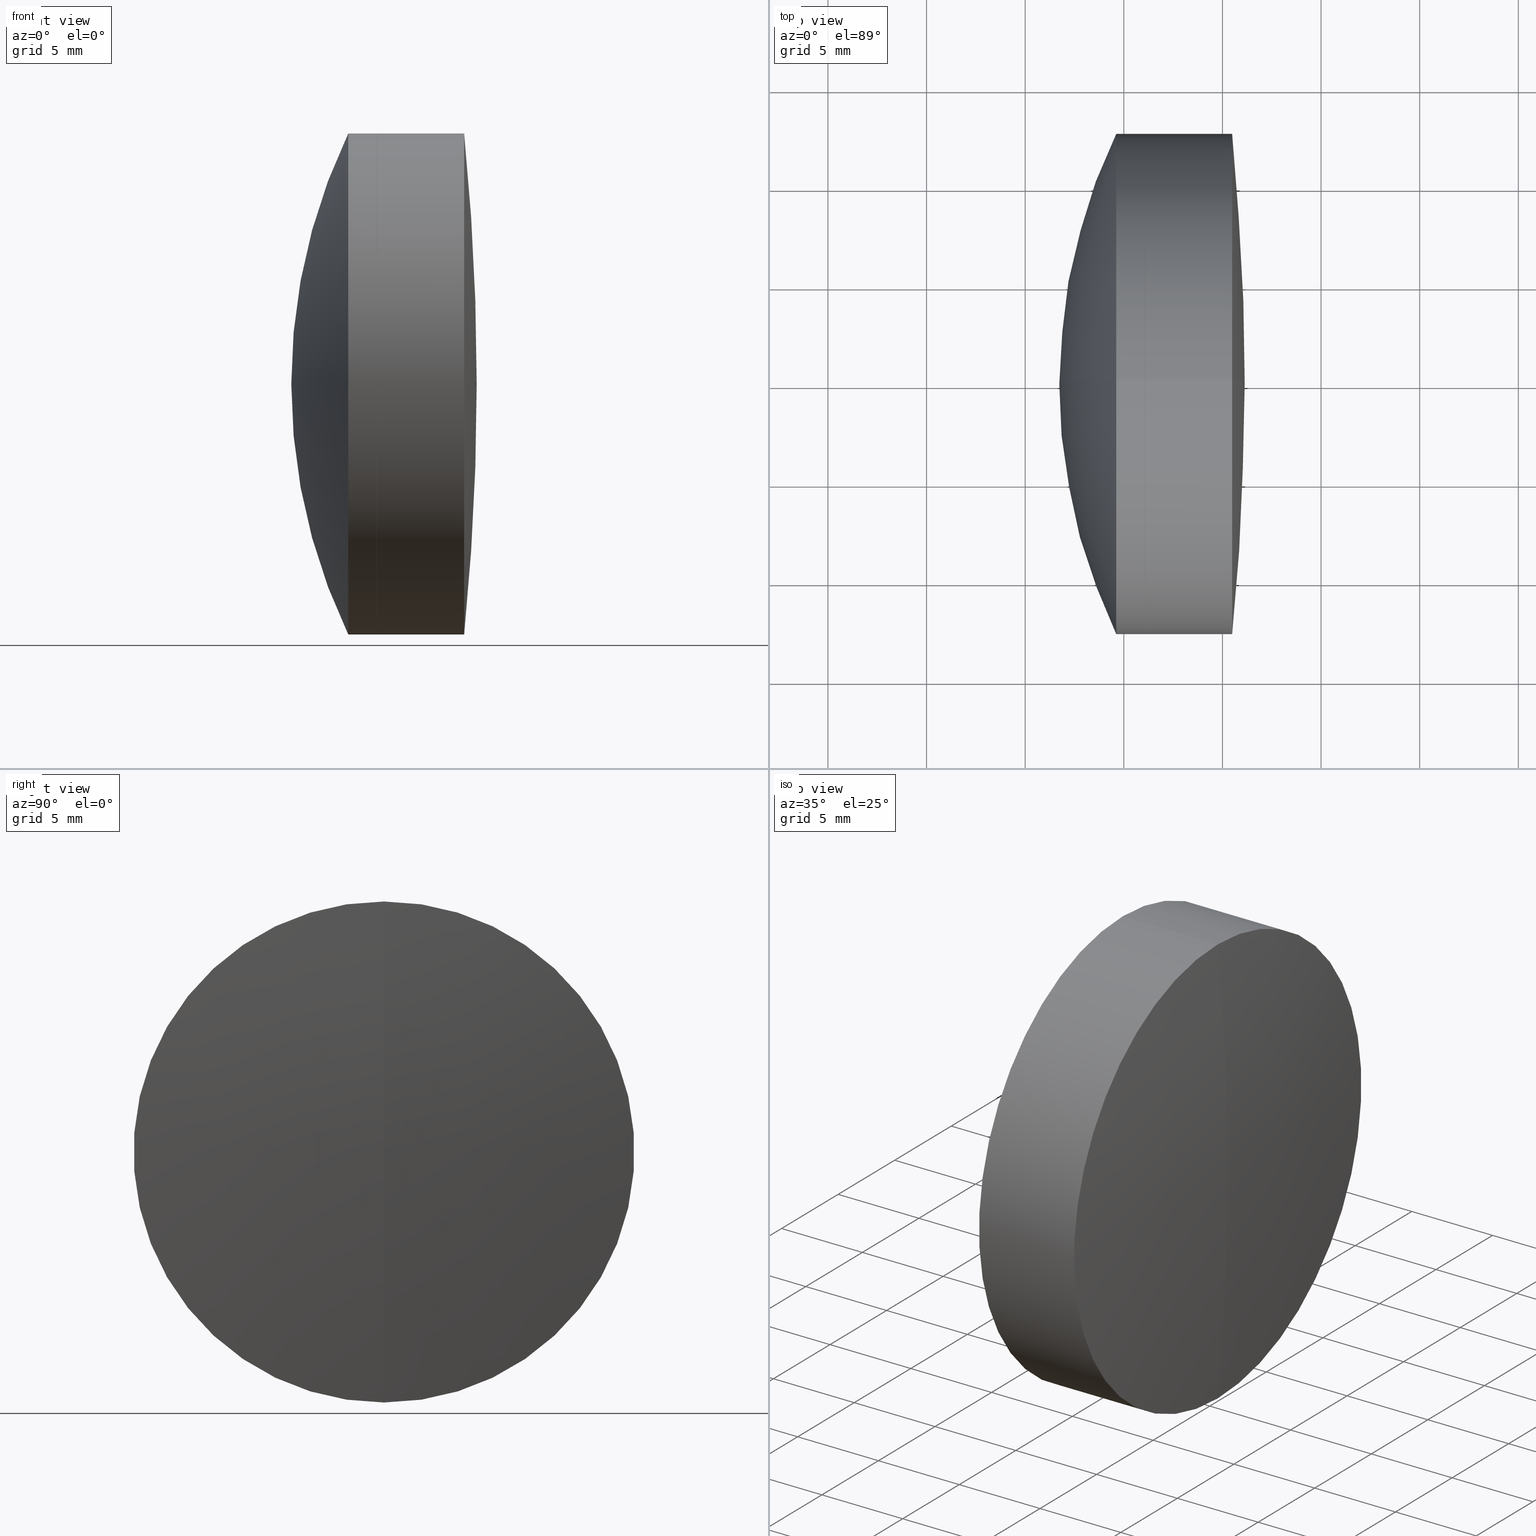
[diagram: canonical four-view strip — front | top / right | iso, engineering-drawing reading convention]
A machine part, canonical four-view strip (front | top / right | iso — engineering-drawing reading convention). The complete STEP part file that produces these views, byte-faithful:
ISO-10303-21;
HEADER;
FILE_DESCRIPTION (( 'STEP AP214' ),
    '1' );
FILE_NAME ('145117.STEP',
    '2019-05-31T03:18:38',
    ( 'user' ),
    ( '΢���й�' ),
    'SwSTEP 2.0',
    'SolidWorks 2016',
    '' );
FILE_SCHEMA (( 'AUTOMOTIVE_DESIGN' ));
ENDSEC;

DATA;
#1 = ORIENTED_EDGE ( 'NONE', *, *, #314, .T. ) ;
#2 = ADVANCED_FACE ( 'NONE', ( #160 ), #112, .T. ) ;
#3 = PRODUCT_DEFINITION ( 'δ֪', '', #23, #30 ) ;
#4 = SPHERICAL_SURFACE ( 'NONE', #321, 127.0600000000000300 ) ;
#5 = VERTEX_POINT ( 'NONE', #101 ) ;
#6 = CARTESIAN_POINT ( 'NONE',  ( 290.4926931922049700, 0.0000000000000000000, 12.70000000000000600 ) ) ;
#7 = CARTESIAN_POINT ( 'NONE',  ( 311.1089865545652100, 0.0000000000000000000, 8.126185643377277200E-015 ) ) ;
#8 = AXIS2_PLACEMENT_3D ( 'NONE', #7, #26, #216 ) ;
#9 = ORIENTED_EDGE ( 'NONE', *, *, #153, .T. ) ;
#10 = DIRECTION ( 'NONE',  ( -0.0000000000000000000, 1.000000000000000000, 1.224646799147353200E-016 ) ) ;
#11 = AXIS2_PLACEMENT_3D ( 'NONE', #261, #141, #14 ) ;
#12 = FILL_AREA_STYLE ('',( #316 ) ) ;
#13 = CIRCLE ( 'NONE', #8, 29.38000000000002700 ) ;
#14 = DIRECTION ( 'NONE',  ( 0.0000000000000000000, 0.0000000000000000000, 1.000000000000000000 ) ) ;
#15 = CIRCLE ( 'NONE', #308, 12.70000000000002400 ) ;
#16 = DIRECTION ( 'NONE',  ( 0.0000000000000000000, 1.000000000000000000, 0.0000000000000000000 ) ) ;
#17 = DIRECTION ( 'NONE',  ( -1.000000000000000000, -0.0000000000000000000, -0.0000000000000000000 ) ) ;
#18 = PRESENTATION_STYLE_ASSIGNMENT (( #169 ) ) ;
#19 = CARTESIAN_POINT ( 'NONE',  ( 286.0709410747099400, 0.0000000000000000000, 0.0000000000000000000 ) ) ;
#20 = EDGE_CURVE ( 'NONE', #226, #215, #171, .T. ) ;
#21 = SPHERICAL_SURFACE ( 'NONE', #305, 29.38000000000002700 ) ;
#22 = DIRECTION ( 'NONE',  ( 0.0000000000000000000, 0.0000000000000000000, -1.000000000000000000 ) ) ;
#23 = PRODUCT_DEFINITION_FORMATION_WITH_SPECIFIED_SOURCE ( '�κ�', '', #269, .NOT_KNOWN. ) ;
#24 = SURFACE_STYLE_FILL_AREA ( #133 ) ;
#25 = COLOUR_RGB ( '',1.000000000000000000, 1.000000000000000000, 1.000000000000000000 ) ;
#26 = DIRECTION ( 'NONE',  ( 0.0000000000000000000, -1.000000000000000000, -1.224646799147353200E-016 ) ) ;
#27 = PRESENTATION_STYLE_ASSIGNMENT (( #49 ) ) ;
#28 = DIRECTION ( 'NONE',  ( 0.0000000000000000000, -1.000000000000000000, 0.0000000000000000000 ) ) ;
#29 = CARTESIAN_POINT ( 'NONE',  ( 286.0709410747099400, 0.0000000000000000000, 12.70000000000000800 ) ) ;
#30 = PRODUCT_DEFINITION_CONTEXT ( 'detailed design', #90, 'design' ) ;
#31 = DIRECTION ( 'NONE',  ( 0.0000000000000000000, 0.0000000000000000000, 1.000000000000000000 ) ) ;
#32 = ORIENTED_EDGE ( 'NONE', *, *, #173, .F. ) ;
#33 = AXIS2_PLACEMENT_3D ( 'NONE', #172, #335, #295 ) ;
#34 = DIRECTION ( 'NONE',  ( 0.0000000000000000000, 0.0000000000000000000, -1.000000000000000000 ) ) ;
#35 = AXIS2_PLACEMENT_3D ( 'NONE', #68, #61, #52 ) ;
#36 = VECTOR ( 'NONE', #123, 1000.000000000000000 ) ;
#37 = SPHERICAL_SURFACE ( 'NONE', #89, 25.05000000000002200 ) ;
#38 = CIRCLE ( 'NONE', #74, 25.05000000000001800 ) ;
#39 = EDGE_CURVE ( 'NONE', #215, #292, #150, .T. ) ;
#40 = ADVANCED_FACE ( 'NONE', ( #151 ), #170, .T. ) ;
#41 = PRODUCT_RELATED_PRODUCT_CATEGORY ( 'part', '', ( #269 ) ) ;
#42 = CIRCLE ( 'NONE', #127, 29.38000000000002700 ) ;
#43 = CIRCLE ( 'NONE', #147, 12.70000000000000600 ) ;
#44 = ADVANCED_FACE ( 'NONE', ( #139 ), #137, .T. ) ;
#45 = CARTESIAN_POINT ( 'NONE',  ( 284.6156968381105800, -1.555301434917138400E-015, 12.70000000000000600 ) ) ;
#46 = DIRECTION ( 'NONE',  ( 0.0000000000000000000, -1.000000000000000000, 0.0000000000000000000 ) ) ;
#47 = ADVANCED_BREP_SHAPE_REPRESENTATION ( '145117', ( #326, #196, #330 ), #200 ) ;
#48 = SURFACE_STYLE_FILL_AREA ( #12 ) ;
#49 = SURFACE_STYLE_USAGE ( .BOTH. , #64 ) ;
#50 = AXIS2_PLACEMENT_3D ( 'NONE', #344, #118, #298 ) ;
#51 = EDGE_CURVE ( 'NONE', #323, #209, #144, .T. ) ;
#52 = DIRECTION ( 'NONE',  ( 0.0000000000000000000, 0.0000000000000000000, -1.000000000000000000 ) ) ;
#53 =( LENGTH_UNIT ( ) NAMED_UNIT ( * ) SI_UNIT ( .MILLI., .METRE. ) );
#54 = AXIS2_PLACEMENT_3D ( 'NONE', #82, #46, #22 ) ;
#55 = CIRCLE ( 'NONE', #54, 25.05000000000002200 ) ;
#56 = VECTOR ( 'NONE', #243, 1000.000000000000000 ) ;
#57 = DIRECTION ( 'NONE',  ( 0.0000000000000000000, 1.000000000000000000, 0.0000000000000000000 ) ) ;
#58 = VECTOR ( 'NONE', #197, 1000.000000000000000 ) ;
#59 = EDGE_LOOP ( 'NONE', ( #1, #310, #340, #92 ) ) ;
#60 = EDGE_CURVE ( 'NONE', #119, #209, #136, .T. ) ;
#61 = DIRECTION ( 'NONE',  ( 0.0000000000000000000, -1.000000000000000000, 0.0000000000000000000 ) ) ;
#62 = CIRCLE ( 'NONE', #272, 127.0600000000000300 ) ;
#63 = CYLINDRICAL_SURFACE ( 'NONE', #343, 12.70000000000000600 ) ;
#64 = SURFACE_SIDE_STYLE ('',( #48 ) ) ;
#65 =( LENGTH_UNIT ( ) NAMED_UNIT ( * ) SI_UNIT ( .MILLI., .METRE. ) );
#66 = ORIENTED_EDGE ( 'NONE', *, *, #178, .T. ) ;
#67 = ORIENTED_EDGE ( 'NONE', *, *, #60, .T. ) ;
#68 = CARTESIAN_POINT ( 'NONE',  ( 164.0689865545651600, 0.0000000000000000000, 0.0000000000000000000 ) ) ;
#69 = AXIS2_PLACEMENT_3D ( 'NONE', #164, #179, #199 ) ;
#70 = ADVANCED_FACE ( 'NONE', ( #95 ), #88, .T. ) ;
#71 = SPHERICAL_SURFACE ( 'NONE', #11, 127.0600000000000300 ) ;
#72 = DIRECTION ( 'NONE',  ( 0.0000000000000000000, 0.0000000000000000000, 1.000000000000000000 ) ) ;
#73 = FACE_OUTER_BOUND ( 'NONE', #296, .T. ) ;
#74 = AXIS2_PLACEMENT_3D ( 'NONE', #232, #114, #98 ) ;
#75 = DIRECTION ( 'NONE',  ( 0.0000000000000000000, 0.0000000000000000000, 1.000000000000000000 ) ) ;
#76 = CIRCLE ( 'NONE', #35, 127.0600000000000300 ) ;
#77 = ADVANCED_FACE ( 'NONE', ( #73 ), #180, .T. ) ;
#78 = ORIENTED_EDGE ( 'NONE', *, *, #60, .F. ) ;
#79 = ADVANCED_FACE ( 'NONE', ( #100 ), #63, .T. ) ;
#80 = EDGE_CURVE ( 'NONE', #250, #323, #62, .T. ) ;
#81 = ORIENTED_EDGE ( 'NONE', *, *, #307, .T. ) ;
#82 = CARTESIAN_POINT ( 'NONE',  ( 264.4789865545651500, 0.0000000000000000000, 6.938893903907228400E-015 ) ) ;
#83 = DIRECTION ( 'NONE',  ( -0.0000000000000000000, -1.000000000000000000, -0.0000000000000000000 ) ) ;
#84 = FACE_OUTER_BOUND ( 'NONE', #254, .T. ) ;
#85 = UNCERTAINTY_MEASURE_WITH_UNIT (LENGTH_MEASURE( 1.000000000000000100E-005 ), #311, 'distance_accuracy_value', 'NONE');
#86 = CIRCLE ( 'NONE', #184, 12.70000000000000600 ) ;
#87 = STYLED_ITEM ( 'NONE', ( #18 ), #326 ) ;
#88 = SPHERICAL_SURFACE ( 'NONE', #293, 25.05000000000001800 ) ;
#89 = AXIS2_PLACEMENT_3D ( 'NONE', #333, #57, #167 ) ;
#90 = APPLICATION_CONTEXT ( 'automotive_design' ) ;
#91 = ORIENTED_EDGE ( 'NONE', *, *, #176, .F. ) ;
#92 = ORIENTED_EDGE ( 'NONE', *, *, #20, .F. ) ;
#93 = ADVANCED_FACE ( 'NONE', ( #168 ), #71, .T. ) ;
#94 = CARTESIAN_POINT ( 'NONE',  ( 164.0689865545651600, 0.0000000000000000000, 0.0000000000000000000 ) ) ;
#95 = FACE_OUTER_BOUND ( 'NONE', #202, .T. ) ;
#96 = EDGE_CURVE ( 'NONE', #302, #209, #15, .T. ) ;
#97 = DIRECTION ( 'NONE',  ( 0.0000000000000000000, 0.0000000000000000000, 1.000000000000000000 ) ) ;
#98 = DIRECTION ( 'NONE',  ( 0.0000000000000000000, -1.224646799147353200E-016, 1.000000000000000000 ) ) ;
#99 = DIRECTION ( 'NONE',  ( -1.000000000000000000, -0.0000000000000000000, -0.0000000000000000000 ) ) ;
#100 = FACE_OUTER_BOUND ( 'NONE', #59, .T. ) ;
#101 = CARTESIAN_POINT ( 'NONE',  ( 289.5289865545651700, 0.0000000000000000000, 8.472764019839290200E-015 ) ) ;
#102 = DIRECTION ( 'NONE',  ( 0.0000000000000000000, 0.0000000000000000000, -1.000000000000000000 ) ) ;
#103 = CARTESIAN_POINT ( 'NONE',  ( 124.5233095260452400, 1.555301434917139200E-015, -12.70000000000000600 ) ) ;
#104 = ORIENTED_EDGE ( 'NONE', *, *, #117, .F. ) ;
#105 = FILL_AREA_STYLE_COLOUR ( '', #285 ) ;
#106 = PRESENTATION_LAYER_ASSIGNMENT (  '', '', ( #87 ) ) ;
#107 = DIRECTION ( 'NONE',  ( -1.000000000000000000, -0.0000000000000000000, -0.0000000000000000000 ) ) ;
#108 = CARTESIAN_POINT ( 'NONE',  ( 311.1089865545652100, 0.0000000000000000000, 8.126185643377277200E-015 ) ) ;
#109 = FACE_OUTER_BOUND ( 'NONE', #274, .T. ) ;
#110 = AXIS2_PLACEMENT_3D ( 'NONE', #19, #17, #315 ) ;
#111 = DIRECTION ( 'NONE',  ( -1.000000000000000000, -0.0000000000000000000, -0.0000000000000000000 ) ) ;
#112 = CYLINDRICAL_SURFACE ( 'NONE', #228, 12.70000000000001500 ) ;
#113 = DIRECTION ( 'NONE',  ( 0.0000000000000000000, 1.000000000000000000, 0.0000000000000000000 ) ) ;
#114 = DIRECTION ( 'NONE',  ( -0.0000000000000000000, 1.000000000000000000, 1.224646799147353200E-016 ) ) ;
#115 = SHAPE_DEFINITION_REPRESENTATION ( #174, #47 ) ;
#116 = DIRECTION ( 'NONE',  ( -1.000000000000000000, -0.0000000000000000000, -0.0000000000000000000 ) ) ;
#117 = EDGE_CURVE ( 'NONE', #250, #282, #76, .T. ) ;
#118 = DIRECTION ( 'NONE',  ( -1.000000000000000000, -0.0000000000000000000, -0.0000000000000000000 ) ) ;
#119 = VERTEX_POINT ( 'NONE', #212 ) ;
#120 = VERTEX_POINT ( 'NONE', #270 ) ;
#121 = APPLICATION_CONTEXT ( 'automotive_design' ) ;
#122 = DIRECTION ( 'NONE',  ( 0.0000000000000000000, 0.0000000000000000000, 1.000000000000000000 ) ) ;
#123 = DIRECTION ( 'NONE',  ( -1.000000000000000000, -0.0000000000000000000, -0.0000000000000000000 ) ) ;
#124 = MECHANICAL_DESIGN_GEOMETRIC_PRESENTATION_REPRESENTATION (  '', ( #87 ), #143 ) ;
#125 = DIRECTION ( 'NONE',  ( 0.0000000000000000000, 0.0000000000000000000, 1.000000000000000000 ) ) ;
#126 = ORIENTED_EDGE ( 'NONE', *, *, #176, .T. ) ;
#127 = AXIS2_PLACEMENT_3D ( 'NONE', #249, #221, #223 ) ;
#128 = DIRECTION ( 'NONE',  ( 1.000000000000000000, 0.0000000000000000000, 0.0000000000000000000 ) ) ;
#129 = ORIENTED_EDGE ( 'NONE', *, *, #51, .F. ) ;
#130 = DIRECTION ( 'NONE',  ( 0.0000000000000000000, 1.000000000000000000, 0.0000000000000000000 ) ) ;
#131 = CARTESIAN_POINT ( 'NONE',  ( 264.4789865545651500, 0.0000000000000000000, 6.938893903907228400E-015 ) ) ;
#132 = CARTESIAN_POINT ( 'NONE',  ( 281.7289865545652100, 0.0000000000000000000, 6.327179495429814500E-015 ) ) ;
#133 = FILL_AREA_STYLE ('',( #276 ) ) ;
#134 = EDGE_CURVE ( 'NONE', #120, #292, #203, .T. ) ;
#135 = CARTESIAN_POINT ( 'NONE',  ( 284.6156968381105800, 0.0000000000000000000, -12.69999999999999900 ) ) ;
#136 = CIRCLE ( 'NONE', #194, 25.05000000000002200 ) ;
#137 = SPHERICAL_SURFACE ( 'NONE', #257, 29.38000000000002700 ) ;
#138 = CARTESIAN_POINT ( 'NONE',  ( 264.4789865545651500, 0.0000000000000000000, 6.938893903907228400E-015 ) ) ;
#139 = FACE_OUTER_BOUND ( 'NONE', #317, .T. ) ;
#140 = ORIENTED_EDGE ( 'NONE', *, *, #314, .F. ) ;
#141 = DIRECTION ( 'NONE',  ( 0.0000000000000000000, 1.000000000000000000, 0.0000000000000000000 ) ) ;
#142 = CARTESIAN_POINT ( 'NONE',  ( 286.0709410747099400, 0.0000000000000000000, 0.0000000000000000000 ) ) ;
#143 =( GEOMETRIC_REPRESENTATION_CONTEXT ( 3 ) GLOBAL_UNCERTAINTY_ASSIGNED_CONTEXT ( ( #154 ) ) GLOBAL_UNIT_ASSIGNED_CONTEXT ( ( #53, #334, #246 ) ) REPRESENTATION_CONTEXT ( 'NONE', 'WORKASPACE' ) );
#144 = LINE ( 'NONE', #188, #145 ) ;
#145 = VECTOR ( 'NONE', #99, 1000.000000000000000 ) ;
#146 = CARTESIAN_POINT ( 'NONE',  ( 0.0000000000000000000, 0.0000000000000000000, 0.0000000000000000000 ) ) ;
#147 = AXIS2_PLACEMENT_3D ( 'NONE', #303, #107, #97 ) ;
#148 = DIRECTION ( 'NONE',  ( -0.0000000000000000000, -1.000000000000000000, -0.0000000000000000000 ) ) ;
#149 = SURFACE_STYLE_USAGE ( .BOTH. , #306 ) ;
#150 = CIRCLE ( 'NONE', #207, 12.70000000000000600 ) ;
#151 = FACE_OUTER_BOUND ( 'NONE', #279, .T. ) ;
#152 = DIRECTION ( 'NONE',  ( -1.000000000000000000, -0.0000000000000000000, -0.0000000000000000000 ) ) ;
#153 = EDGE_CURVE ( 'NONE', #119, #302, #55, .T. ) ;
#154 = UNCERTAINTY_MEASURE_WITH_UNIT (LENGTH_MEASURE( 1.000000000000000100E-005 ), #53, 'distance_accuracy_value', 'NONE');
#155 = PRESENTATION_STYLE_ASSIGNMENT (( #149 ) ) ;
#156 = ADVANCED_FACE ( 'NONE', ( #165 ), #37, .F. ) ;
#157 =( NAMED_UNIT ( * ) PLANE_ANGLE_UNIT ( ) SI_UNIT ( $, .RADIAN. ) );
#158 = EDGE_CURVE ( 'NONE', #5, #120, #38, .T. ) ;
#159 = ORIENTED_EDGE ( 'NONE', *, *, #178, .F. ) ;
#160 = FACE_OUTER_BOUND ( 'NONE', #191, .T. ) ;
#161 = CARTESIAN_POINT ( 'NONE',  ( 164.0689865545651600, 0.0000000000000000000, 0.0000000000000000000 ) ) ;
#162 = CARTESIAN_POINT ( 'NONE',  ( 286.0709410747099400, 0.0000000000000000000, 12.70000000000002400 ) ) ;
#163 = CARTESIAN_POINT ( 'NONE',  ( -0.5519199926577972300, 0.0000000000000000000, 12.70000000000001500 ) ) ;
#164 = CARTESIAN_POINT ( 'NONE',  ( 286.0709410747099400, 0.0000000000000000000, 0.0000000000000000000 ) ) ;
#165 = FACE_OUTER_BOUND ( 'NONE', #198, .T. ) ;
#166 = AXIS2_PLACEMENT_3D ( 'NONE', #193, #218, #291 ) ;
#167 = DIRECTION ( 'NONE',  ( 0.0000000000000000000, 0.0000000000000000000, 1.000000000000000000 ) ) ;
#168 = FACE_OUTER_BOUND ( 'NONE', #332, .T. ) ;
#169 = SURFACE_STYLE_USAGE ( .BOTH. , #267 ) ;
#170 = SPHERICAL_SURFACE ( 'NONE', #247, 25.05000000000001800 ) ;
#171 = LINE ( 'NONE', #192, #56 ) ;
#172 = CARTESIAN_POINT ( 'NONE',  ( 286.0709410747099400, 0.0000000000000000000, 0.0000000000000000000 ) ) ;
#173 = EDGE_CURVE ( 'NONE', #120, #226, #224, .T. ) ;
#174 = PRODUCT_DEFINITION_SHAPE ( 'NONE', 'NONE',  #3 ) ;
#175 = CARTESIAN_POINT ( 'NONE',  ( 284.6156968381105800, 0.0000000000000000000, 0.0000000000000000000 ) ) ;
#176 = EDGE_CURVE ( 'NONE', #292, #183, #42, .T. ) ;
#177 = ORIENTED_EDGE ( 'NONE', *, *, #347, .F. ) ;
#178 = EDGE_CURVE ( 'NONE', #323, #282, #43, .T. ) ;
#179 = DIRECTION ( 'NONE',  ( -1.000000000000000000, -0.0000000000000000000, -0.0000000000000000000 ) ) ;
#180 = CYLINDRICAL_SURFACE ( 'NONE', #322, 12.70000000000000600 ) ;
#181 = ORIENTED_EDGE ( 'NONE', *, *, #173, .T. ) ;
#182 = PRODUCT_CONTEXT ( 'NONE', #121, 'mechanical' ) ;
#183 = VERTEX_POINT ( 'NONE', #132 ) ;
#184 = AXIS2_PLACEMENT_3D ( 'NONE', #175, #320, #290 ) ;
#185 = CARTESIAN_POINT ( 'NONE',  ( 264.4789865545651500, 0.0000000000000000000, 6.938893903907228400E-015 ) ) ;
#186 = APPLICATION_PROTOCOL_DEFINITION ( 'draft international standard', 'automotive_design', 1998, #121 ) ;
#187 = LINE ( 'NONE', #163, #36 ) ;
#188 = CARTESIAN_POINT ( 'NONE',  ( -0.5519199926577972300, 1.555301434917140400E-015, -12.70000000000001500 ) ) ;
#189 = DIRECTION ( 'NONE',  ( 0.0000000000000000000, 0.0000000000000000000, 1.000000000000000000 ) ) ;
#190 = CARTESIAN_POINT ( 'NONE',  ( 264.4789865545651500, 0.0000000000000000000, 6.938893903907228400E-015 ) ) ;
#191 = EDGE_LOOP ( 'NONE', ( #129, #66, #275, #206 ) ) ;
#192 = CARTESIAN_POINT ( 'NONE',  ( 124.5233095260452400, 0.0000000000000000000, 12.70000000000000600 ) ) ;
#193 = CARTESIAN_POINT ( 'NONE',  ( 290.4926931922049700, 0.0000000000000000000, 0.0000000000000000000 ) ) ;
#194 = AXIS2_PLACEMENT_3D ( 'NONE', #185, #10, #208 ) ;
#195 = FACE_OUTER_BOUND ( 'NONE', #248, .T. ) ;
#196 = MANIFOLD_SOLID_BREP ( '��ת3', #222 ) ;
#197 = DIRECTION ( 'NONE',  ( -1.000000000000000000, -0.0000000000000000000, -0.0000000000000000000 ) ) ;
#198 = EDGE_LOOP ( 'NONE', ( #78, #9, #287 ) ) ;
#199 = DIRECTION ( 'NONE',  ( 0.0000000000000000000, 0.0000000000000000000, 1.000000000000000000 ) ) ;
#200 =( GEOMETRIC_REPRESENTATION_CONTEXT ( 3 ) GLOBAL_UNCERTAINTY_ASSIGNED_CONTEXT ( ( #217 ) ) GLOBAL_UNIT_ASSIGNED_CONTEXT ( ( #319, #273, #241 ) ) REPRESENTATION_CONTEXT ( 'NONE', 'WORKASPACE' ) );
#201 = DIRECTION ( 'NONE',  ( 0.0000000000000000000, 0.0000000000000000000, 1.000000000000000000 ) ) ;
#202 = EDGE_LOOP ( 'NONE', ( #234, #342, #140 ) ) ;
#203 = LINE ( 'NONE', #103, #58 ) ;
#204 = DIRECTION ( 'NONE',  ( 0.0000000000000000000, 0.0000000000000000000, 1.000000000000000000 ) ) ;
#205 = CARTESIAN_POINT ( 'NONE',  ( 290.4926931922049700, 1.555301434917140000E-015, -12.70000000000000600 ) ) ;
#206 = ORIENTED_EDGE ( 'NONE', *, *, #299, .F. ) ;
#207 = AXIS2_PLACEMENT_3D ( 'NONE', #259, #219, #75 ) ;
#208 = DIRECTION ( 'NONE',  ( 0.0000000000000000000, -1.224646799147353500E-016, 1.000000000000000000 ) ) ;
#209 = VERTEX_POINT ( 'NONE', #253 ) ;
#210 = DIRECTION ( 'NONE',  ( 0.0000000000000000000, 0.0000000000000000000, 1.000000000000000000 ) ) ;
#211 = DIRECTION ( 'NONE',  ( -0.0000000000000000000, 1.000000000000000000, 1.224646799147353200E-016 ) ) ;
#212 = CARTESIAN_POINT ( 'NONE',  ( 289.5289865545651700, 0.0000000000000000000, 8.472764019839290200E-015 ) ) ;
#213 = ADVANCED_FACE ( 'NONE', ( #313 ), #21, .T. ) ;
#214 = ORIENTED_EDGE ( 'NONE', *, *, #327, .F. ) ;
#215 = VERTEX_POINT ( 'NONE', #45 ) ;
#216 = DIRECTION ( 'NONE',  ( 0.0000000000000000000, 1.224646799147353200E-016, -1.000000000000000000 ) ) ;
#217 = UNCERTAINTY_MEASURE_WITH_UNIT (LENGTH_MEASURE( 1.000000000000000100E-005 ), #319, 'distance_accuracy_value', 'NONE');
#218 = DIRECTION ( 'NONE',  ( -1.000000000000000000, -0.0000000000000000000, -0.0000000000000000000 ) ) ;
#219 = DIRECTION ( 'NONE',  ( -1.000000000000000000, -0.0000000000000000000, -0.0000000000000000000 ) ) ;
#220 = CIRCLE ( 'NONE', #166, 12.70000000000000600 ) ;
#221 = DIRECTION ( 'NONE',  ( 0.0000000000000000000, 1.000000000000000000, -0.0000000000000000000 ) ) ;
#222 = CLOSED_SHELL ( 'NONE', ( #93, #262, #240, #156, #2, #237 ) ) ;
#223 = DIRECTION ( 'NONE',  ( 0.0000000000000000000, 0.0000000000000000000, 1.000000000000000000 ) ) ;
#224 = CIRCLE ( 'NONE', #110, 12.70000000000000800 ) ;
#225 = STYLED_ITEM ( 'NONE', ( #27 ), #196 ) ;
#226 = VERTEX_POINT ( 'NONE', #29 ) ;
#227 = ORIENTED_EDGE ( 'NONE', *, *, #327, .T. ) ;
#228 = AXIS2_PLACEMENT_3D ( 'NONE', #231, #263, #122 ) ;
#229 = ORIENTED_EDGE ( 'NONE', *, *, #230, .F. ) ;
#230 = EDGE_CURVE ( 'NONE', #282, #302, #187, .T. ) ;
#231 = CARTESIAN_POINT ( 'NONE',  ( -0.5519199926577972300, 0.0000000000000000000, 0.0000000000000000000 ) ) ;
#232 = CARTESIAN_POINT ( 'NONE',  ( 264.4789865545651500, 0.0000000000000000000, 6.938893903907228400E-015 ) ) ;
#233 = ORIENTED_EDGE ( 'NONE', *, *, #80, .F. ) ;
#234 = ORIENTED_EDGE ( 'NONE', *, *, #256, .F. ) ;
#235 = STYLED_ITEM ( 'NONE', ( #155 ), #47 ) ;
#236 = CARTESIAN_POINT ( 'NONE',  ( 264.4789865545651500, 0.0000000000000000000, 6.938893903907228400E-015 ) ) ;
#237 = ADVANCED_FACE ( 'NONE', ( #195 ), #4, .T. ) ;
#238 = ORIENTED_EDGE ( 'NONE', *, *, #20, .T. ) ;
#239 = ORIENTED_EDGE ( 'NONE', *, *, #39, .T. ) ;
#240 = ADVANCED_FACE ( 'NONE', ( #84 ), #294, .F. ) ;
#241 =( NAMED_UNIT ( * ) SI_UNIT ( $, .STERADIAN. ) SOLID_ANGLE_UNIT ( ) );
#242 = APPLICATION_PROTOCOL_DEFINITION ( 'draft international standard', 'automotive_design', 1998, #90 ) ;
#243 = DIRECTION ( 'NONE',  ( -1.000000000000000000, -0.0000000000000000000, -0.0000000000000000000 ) ) ;
#244 = PRESENTATION_LAYER_ASSIGNMENT (  '', '', ( #225 ) ) ;
#245 = DIRECTION ( 'NONE',  ( 0.0000000000000000000, 0.0000000000000000000, 1.000000000000000000 ) ) ;
#246 =( NAMED_UNIT ( * ) SI_UNIT ( $, .STERADIAN. ) SOLID_ANGLE_UNIT ( ) );
#247 = AXIS2_PLACEMENT_3D ( 'NONE', #190, #113, #210 ) ;
#248 = EDGE_LOOP ( 'NONE', ( #233, #258, #159 ) ) ;
#249 = CARTESIAN_POINT ( 'NONE',  ( 311.1089865545652100, 0.0000000000000000000, 8.126185643377277200E-015 ) ) ;
#250 = VERTEX_POINT ( 'NONE', #341 ) ;
#251 =( NAMED_UNIT ( * ) PLANE_ANGLE_UNIT ( ) SI_UNIT ( $, .RADIAN. ) );
#252 = PRESENTATION_LAYER_ASSIGNMENT (  '', '', ( #235 ) ) ;
#253 = CARTESIAN_POINT ( 'NONE',  ( 286.0709410747099400, 1.555301434917141600E-015, -12.70000000000001700 ) ) ;
#254 = EDGE_LOOP ( 'NONE', ( #266, #67, #325 ) ) ;
#255 = MECHANICAL_DESIGN_GEOMETRIC_PRESENTATION_REPRESENTATION (  '', ( #225 ), #271 ) ;
#256 = EDGE_CURVE ( 'NONE', #5, #226, #304, .T. ) ;
#257 = AXIS2_PLACEMENT_3D ( 'NONE', #278, #148, #329 ) ;
#258 = ORIENTED_EDGE ( 'NONE', *, *, #117, .T. ) ;
#259 = CARTESIAN_POINT ( 'NONE',  ( 284.6156968381105800, 0.0000000000000000000, 0.0000000000000000000 ) ) ;
#260 = ORIENTED_EDGE ( 'NONE', *, *, #347, .T. ) ;
#261 = CARTESIAN_POINT ( 'NONE',  ( 164.0689865545651600, 0.0000000000000000000, 0.0000000000000000000 ) ) ;
#262 = ADVANCED_FACE ( 'NONE', ( #109 ), #324, .T. ) ;
#263 = DIRECTION ( 'NONE',  ( -1.000000000000000000, -0.0000000000000000000, -0.0000000000000000000 ) ) ;
#264 = MECHANICAL_DESIGN_GEOMETRIC_PRESENTATION_REPRESENTATION (  '', ( #235 ), #283 ) ;
#265 = ORIENTED_EDGE ( 'NONE', *, *, #307, .F. ) ;
#266 = ORIENTED_EDGE ( 'NONE', *, *, #153, .F. ) ;
#267 = SURFACE_SIDE_STYLE ('',( #24 ) ) ;
#268 = ORIENTED_EDGE ( 'NONE', *, *, #51, .T. ) ;
#269 = PRODUCT ( '145117', '145117', '', ( #182 ) ) ;
#270 = CARTESIAN_POINT ( 'NONE',  ( 286.0709410747099400, 1.555301434917139600E-015, -12.70000000000001000 ) ) ;
#271 =( GEOMETRIC_REPRESENTATION_CONTEXT ( 3 ) GLOBAL_UNCERTAINTY_ASSIGNED_CONTEXT ( ( #85 ) ) GLOBAL_UNIT_ASSIGNED_CONTEXT ( ( #311, #251, #337 ) ) REPRESENTATION_CONTEXT ( 'NONE', 'WORKASPACE' ) );
#272 = AXIS2_PLACEMENT_3D ( 'NONE', #161, #211, #286 ) ;
#273 =( NAMED_UNIT ( * ) PLANE_ANGLE_UNIT ( ) SI_UNIT ( $, .RADIAN. ) );
#274 = EDGE_LOOP ( 'NONE', ( #227, #268, #346, #229 ) ) ;
#275 = ORIENTED_EDGE ( 'NONE', *, *, #230, .T. ) ;
#276 = FILL_AREA_STYLE_COLOUR ( '', #328 ) ;
#277 = CIRCLE ( 'NONE', #69, 12.70000000000000800 ) ;
#278 = CARTESIAN_POINT ( 'NONE',  ( 311.1089865545652100, 0.0000000000000000000, 8.126185643377277200E-015 ) ) ;
#279 = EDGE_LOOP ( 'NONE', ( #318, #309, #32 ) ) ;
#280 = CIRCLE ( 'NONE', #33, 12.70000000000002400 ) ;
#281 = DIRECTION ( 'NONE',  ( 0.0000000000000000000, 1.000000000000000000, 0.0000000000000000000 ) ) ;
#282 = VERTEX_POINT ( 'NONE', #6 ) ;
#283 =( GEOMETRIC_REPRESENTATION_CONTEXT ( 3 ) GLOBAL_UNCERTAINTY_ASSIGNED_CONTEXT ( ( #297 ) ) GLOBAL_UNIT_ASSIGNED_CONTEXT ( ( #65, #157, #301 ) ) REPRESENTATION_CONTEXT ( 'NONE', 'WORKASPACE' ) );
#284 = CARTESIAN_POINT ( 'NONE',  ( 124.5233095260452400, 0.0000000000000000000, 0.0000000000000000000 ) ) ;
#285 = COLOUR_RGB ( '',1.000000000000000000, 1.000000000000000000, 1.000000000000000000 ) ;
#286 = DIRECTION ( 'NONE',  ( 0.0000000000000000000, -1.224646799147353200E-016, 1.000000000000000000 ) ) ;
#287 = ORIENTED_EDGE ( 'NONE', *, *, #96, .T. ) ;
#288 = AXIS2_PLACEMENT_3D ( 'NONE', #138, #28, #34 ) ;
#289 = SURFACE_STYLE_FILL_AREA ( #312 ) ;
#290 = DIRECTION ( 'NONE',  ( 0.0000000000000000000, 0.0000000000000000000, 1.000000000000000000 ) ) ;
#291 = DIRECTION ( 'NONE',  ( 0.0000000000000000000, 0.0000000000000000000, 1.000000000000000000 ) ) ;
#292 = VERTEX_POINT ( 'NONE', #135 ) ;
#293 = AXIS2_PLACEMENT_3D ( 'NONE', #236, #281, #125 ) ;
#294 = SPHERICAL_SURFACE ( 'NONE', #338, 25.05000000000002200 ) ;
#295 = DIRECTION ( 'NONE',  ( 0.0000000000000000000, 0.0000000000000000000, 1.000000000000000000 ) ) ;
#296 = EDGE_LOOP ( 'NONE', ( #336, #181, #238, #177 ) ) ;
#297 = UNCERTAINTY_MEASURE_WITH_UNIT (LENGTH_MEASURE( 1.000000000000000100E-005 ), #65, 'distance_accuracy_value', 'NONE');
#298 = DIRECTION ( 'NONE',  ( 0.0000000000000000000, 0.0000000000000000000, 1.000000000000000000 ) ) ;
#299 = EDGE_CURVE ( 'NONE', #209, #302, #280, .T. ) ;
#300 = EDGE_LOOP ( 'NONE', ( #260, #81, #91 ) ) ;
#301 =( NAMED_UNIT ( * ) SI_UNIT ( $, .STERADIAN. ) SOLID_ANGLE_UNIT ( ) );
#302 = VERTEX_POINT ( 'NONE', #162 ) ;
#303 = CARTESIAN_POINT ( 'NONE',  ( 290.4926931922049700, 0.0000000000000000000, 0.0000000000000000000 ) ) ;
#304 = CIRCLE ( 'NONE', #288, 25.05000000000001800 ) ;
#305 = AXIS2_PLACEMENT_3D ( 'NONE', #108, #83, #102 ) ;
#306 = SURFACE_SIDE_STYLE ('',( #289 ) ) ;
#307 = EDGE_CURVE ( 'NONE', #215, #183, #13, .T. ) ;
#308 = AXIS2_PLACEMENT_3D ( 'NONE', #142, #116, #31 ) ;
#309 = ORIENTED_EDGE ( 'NONE', *, *, #256, .T. ) ;
#310 = ORIENTED_EDGE ( 'NONE', *, *, #134, .T. ) ;
#311 =( LENGTH_UNIT ( ) NAMED_UNIT ( * ) SI_UNIT ( .MILLI., .METRE. ) );
#312 = FILL_AREA_STYLE ('',( #105 ) ) ;
#313 = FACE_OUTER_BOUND ( 'NONE', #300, .T. ) ;
#314 = EDGE_CURVE ( 'NONE', #226, #120, #277, .T. ) ;
#315 = DIRECTION ( 'NONE',  ( 0.0000000000000000000, 0.0000000000000000000, 1.000000000000000000 ) ) ;
#316 = FILL_AREA_STYLE_COLOUR ( '', #25 ) ;
#317 = EDGE_LOOP ( 'NONE', ( #265, #239, #126 ) ) ;
#318 = ORIENTED_EDGE ( 'NONE', *, *, #158, .F. ) ;
#319 =( LENGTH_UNIT ( ) NAMED_UNIT ( * ) SI_UNIT ( .MILLI., .METRE. ) );
#320 = DIRECTION ( 'NONE',  ( -1.000000000000000000, -0.0000000000000000000, -0.0000000000000000000 ) ) ;
#321 = AXIS2_PLACEMENT_3D ( 'NONE', #94, #16, #245 ) ;
#322 = AXIS2_PLACEMENT_3D ( 'NONE', #339, #152, #72 ) ;
#323 = VERTEX_POINT ( 'NONE', #205 ) ;
#324 = CYLINDRICAL_SURFACE ( 'NONE', #50, 12.70000000000001500 ) ;
#325 = ORIENTED_EDGE ( 'NONE', *, *, #299, .T. ) ;
#326 = MANIFOLD_SOLID_BREP ( '��ת1', #345 ) ;
#327 = EDGE_CURVE ( 'NONE', #282, #323, #220, .T. ) ;
#328 = COLOUR_RGB ( '',1.000000000000000000, 1.000000000000000000, 1.000000000000000000 ) ;
#329 = DIRECTION ( 'NONE',  ( 0.0000000000000000000, 0.0000000000000000000, -1.000000000000000000 ) ) ;
#330 = AXIS2_PLACEMENT_3D ( 'NONE', #146, #201, #128 ) ;
#331 = ORIENTED_EDGE ( 'NONE', *, *, #80, .T. ) ;
#332 = EDGE_LOOP ( 'NONE', ( #104, #331, #214 ) ) ;
#333 = CARTESIAN_POINT ( 'NONE',  ( 264.4789865545651500, 0.0000000000000000000, 6.938893903907228400E-015 ) ) ;
#334 =( NAMED_UNIT ( * ) PLANE_ANGLE_UNIT ( ) SI_UNIT ( $, .RADIAN. ) );
#335 = DIRECTION ( 'NONE',  ( -1.000000000000000000, -0.0000000000000000000, -0.0000000000000000000 ) ) ;
#336 = ORIENTED_EDGE ( 'NONE', *, *, #134, .F. ) ;
#337 =( NAMED_UNIT ( * ) SI_UNIT ( $, .STERADIAN. ) SOLID_ANGLE_UNIT ( ) );
#338 = AXIS2_PLACEMENT_3D ( 'NONE', #131, #130, #204 ) ;
#339 = CARTESIAN_POINT ( 'NONE',  ( 124.5233095260452400, 0.0000000000000000000, 0.0000000000000000000 ) ) ;
#340 = ORIENTED_EDGE ( 'NONE', *, *, #39, .F. ) ;
#341 = CARTESIAN_POINT ( 'NONE',  ( 291.1289865545651900, 0.0000000000000000000, 7.780181114983136500E-015 ) ) ;
#342 = ORIENTED_EDGE ( 'NONE', *, *, #158, .T. ) ;
#343 = AXIS2_PLACEMENT_3D ( 'NONE', #284, #111, #189 ) ;
#344 = CARTESIAN_POINT ( 'NONE',  ( -0.5519199926577972300, 0.0000000000000000000, 0.0000000000000000000 ) ) ;
#345 = CLOSED_SHELL ( 'NONE', ( #70, #79, #213, #44, #77, #40 ) ) ;
#346 = ORIENTED_EDGE ( 'NONE', *, *, #96, .F. ) ;
#347 = EDGE_CURVE ( 'NONE', #292, #215, #86, .T. ) ;
ENDSEC;
END-ISO-10303-21;
